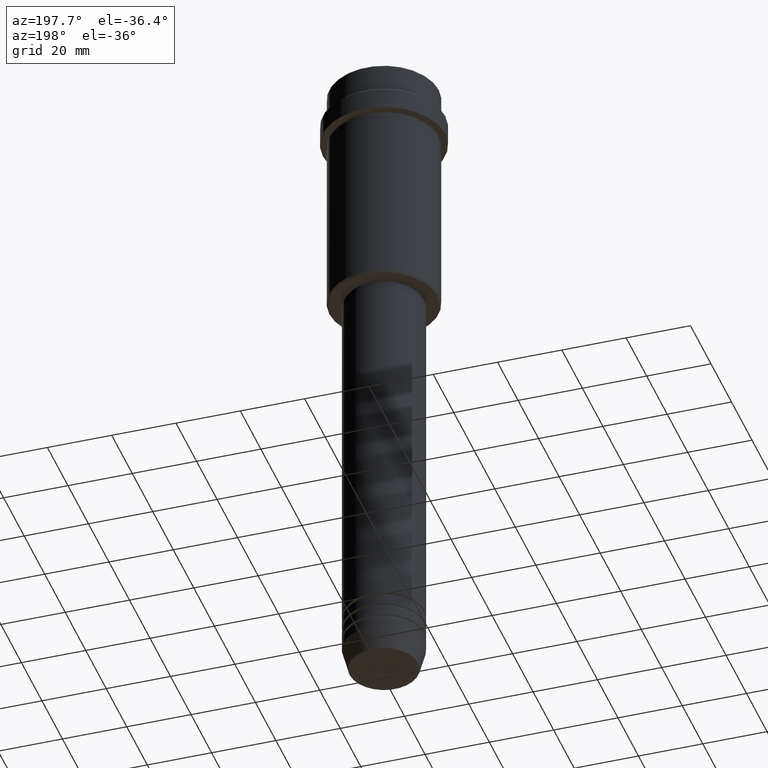
[diagram: clean part render]
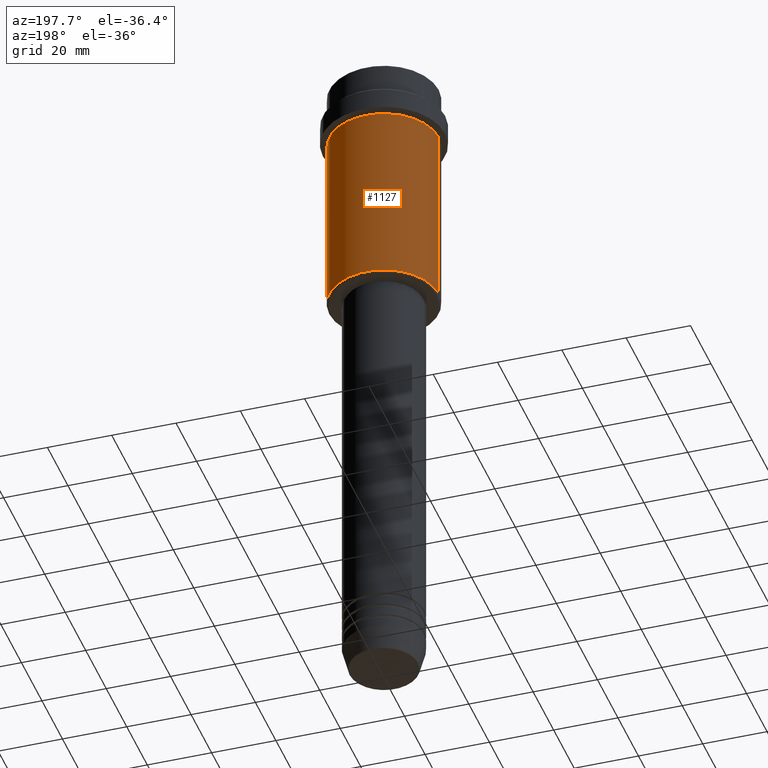
[diagram: same view with one face highlighted and labeled with its STEP entity id]
A machine part, auxiliary view. The second image highlights one B-rep face of the part: STEP entity #1127.
In plain terms, the highlighted cylindrical surface (partial cylindrical patch) has radius 17 mm, axis along (-0, -0, 1).
Its self-contained STEP definition (entity closure, byte-faithful):
#45 = VERTEX_POINT ( 'NONE', #1212 ) ;
#61 = AXIS2_PLACEMENT_3D ( 'NONE', #70, #1149, #158 ) ;
#66 = VECTOR ( 'NONE', #1089, 1000.000000000000000 ) ;
#70 = CARTESIAN_POINT ( 'NONE',  ( 0.000000000000000000, 0.000000000000000000, -18.00000000000000711 ) ) ;
#81 = AXIS2_PLACEMENT_3D ( 'NONE', #281, #911, #376 ) ;
#85 = EDGE_CURVE ( 'NONE', #1397, #976, #238, .T. ) ;
#141 = CARTESIAN_POINT ( 'NONE',  ( 16.99999999999998579, 0.000000000000000000, -75.50000000000000000 ) ) ;
#158 = DIRECTION ( 'NONE',  ( 1.000000000000000000, 0.000000000000000000, 0.000000000000000000 ) ) ;
#200 = AXIS2_PLACEMENT_3D ( 'NONE', #217, #745, #646 ) ;
#217 = CARTESIAN_POINT ( 'NONE',  ( 0.000000000000000000, 0.000000000000000000, 0.000000000000000000 ) ) ;
#238 = CIRCLE ( 'NONE', #61, 16.99999999999997513 ) ;
#271 = CARTESIAN_POINT ( 'NONE',  ( 16.99999999999998579, 0.000000000000000000, 0.000000000000000000 ) ) ;
#278 = DIRECTION ( 'NONE',  ( -0.000000000000000000, -0.000000000000000000, 1.000000000000000000 ) ) ;
#281 = CARTESIAN_POINT ( 'NONE',  ( 0.000000000000000000, 0.000000000000000000, -75.50000000000000000 ) ) ;
#291 = EDGE_CURVE ( 'NONE', #1325, #45, #1287, .T. ) ;
#376 = DIRECTION ( 'NONE',  ( -1.000000000000000000, 0.000000000000000000, 0.000000000000000000 ) ) ;
#416 = ORIENTED_EDGE ( 'NONE', *, *, #291, .T. ) ;
#455 = ORIENTED_EDGE ( 'NONE', *, *, #1336, .T. ) ;
#478 = ORIENTED_EDGE ( 'NONE', *, *, #85, .F. ) ;
#483 = CARTESIAN_POINT ( 'NONE',  ( -16.99999999999997513, 2.081899558550498307E-15, -18.00000000000000711 ) ) ;
#635 = EDGE_LOOP ( 'NONE', ( #416, #455, #478, #819 ) ) ;
#646 = DIRECTION ( 'NONE',  ( 1.000000000000000000, 0.000000000000000000, 0.000000000000000000 ) ) ;
#745 = DIRECTION ( 'NONE',  ( -0.000000000000000000, -0.000000000000000000, 1.000000000000000000 ) ) ;
#819 = ORIENTED_EDGE ( 'NONE', *, *, #884, .F. ) ;
#884 = EDGE_CURVE ( 'NONE', #1325, #1397, #1274, .T. ) ;
#907 = LINE ( 'NONE', #1229, #66 ) ;
#911 = DIRECTION ( 'NONE',  ( -0.000000000000000000, -0.000000000000000000, 1.000000000000000000 ) ) ;
#976 = VERTEX_POINT ( 'NONE', #483 ) ;
#1058 = FACE_OUTER_BOUND ( 'NONE', #635, .T. ) ;
#1089 = DIRECTION ( 'NONE',  ( -0.000000000000000000, -0.000000000000000000, 1.000000000000000000 ) ) ;
#1127 = ADVANCED_FACE ( 'NONE', ( #1058 ), #1297, .T. ) ;
#1149 = DIRECTION ( 'NONE',  ( -0.000000000000000000, -0.000000000000000000, 1.000000000000000000 ) ) ;
#1163 = VECTOR ( 'NONE', #278, 1000.000000000000000 ) ;
#1212 = CARTESIAN_POINT ( 'NONE',  ( -16.99999999999998579, 2.081899558550499096E-15, -75.50000000000000000 ) ) ;
#1229 = CARTESIAN_POINT ( 'NONE',  ( -16.99999999999998579, 2.081899558550499096E-15, 0.000000000000000000 ) ) ;
#1240 = CARTESIAN_POINT ( 'NONE',  ( 16.99999999999997513, 0.000000000000000000, -18.00000000000000711 ) ) ;
#1274 = LINE ( 'NONE', #271, #1163 ) ;
#1287 = CIRCLE ( 'NONE', #81, 16.99999999999998579 ) ;
#1297 = CYLINDRICAL_SURFACE ( 'NONE', #200, 16.99999999999998579 ) ;
#1325 = VERTEX_POINT ( 'NONE', #141 ) ;
#1336 = EDGE_CURVE ( 'NONE', #45, #976, #907, .T. ) ;
#1397 = VERTEX_POINT ( 'NONE', #1240 ) ;